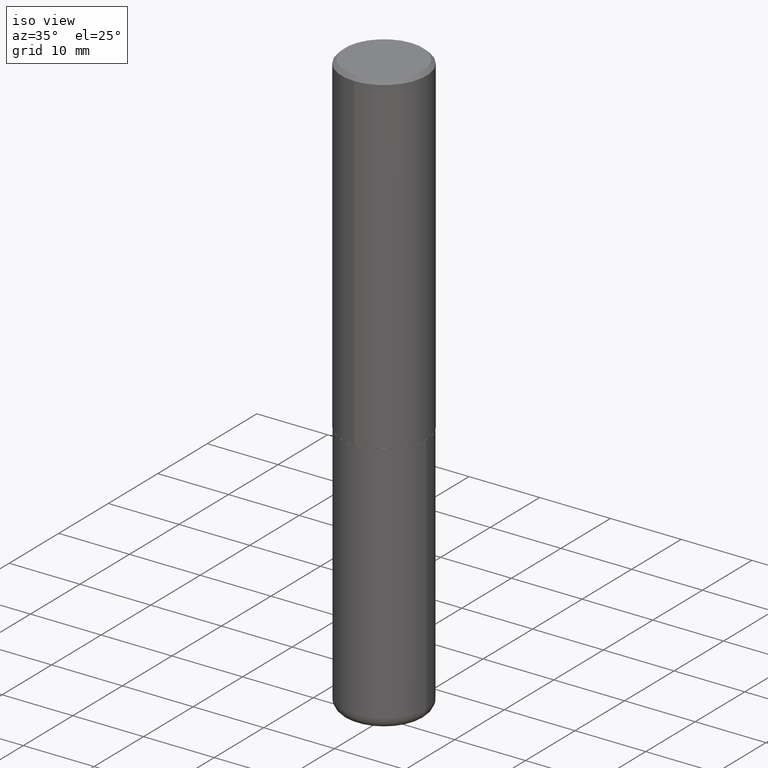
[diagram: clean part render]
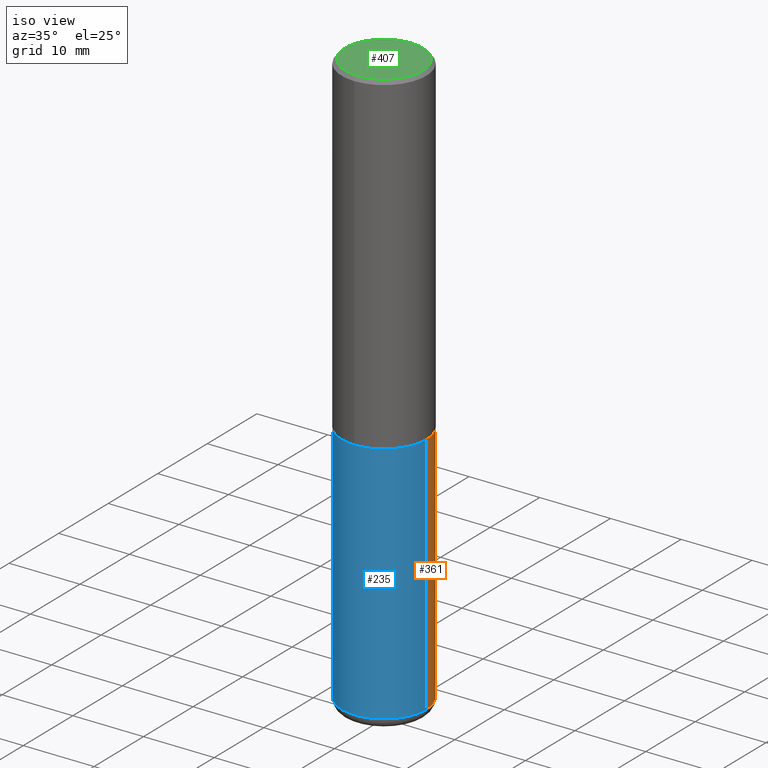
[diagram: same view with three faces highlighted in distinct colors, each labeled with its STEP entity id]
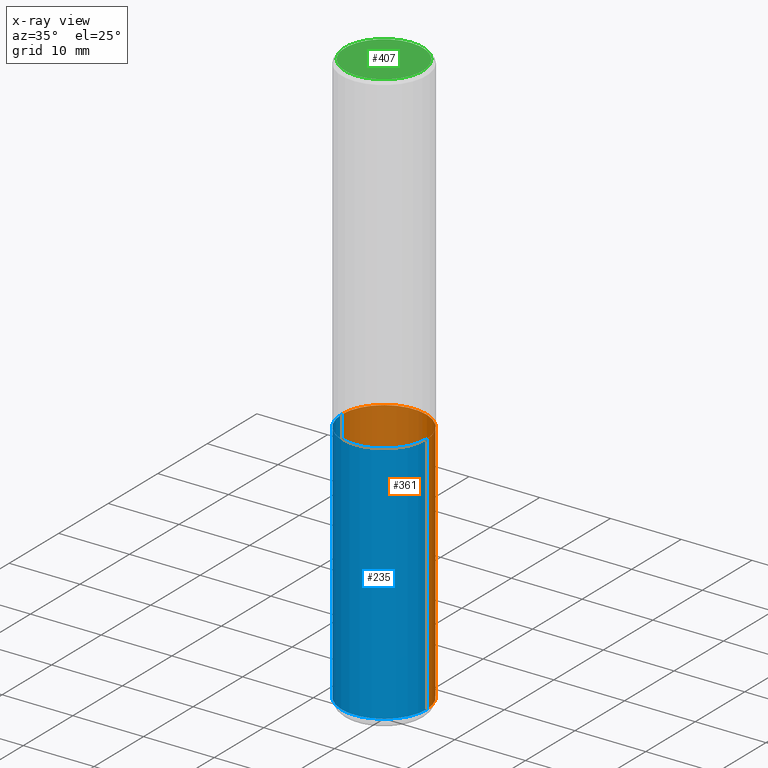
[diagram: x-ray of the same camera — body ghosted, the three highlighted faces saturated]
A machine part, iso view with three faces highlighted in distinct colors.
The next image is the same camera in x-ray (body ghosted, the three faces saturated) — at least one of them is partly hidden behind the body in this view.
Their STEP definitions:

[orange] entity #361 — the highlighted cylindrical surface (partial cylindrical patch) has radius 5.9995 mm, axis along (-0, 0, 1).
#19 = ORIENTED_EDGE ( 'NONE', *, *, #353, .F. ) ;
#23 = CARTESIAN_POINT ( 'NONE',  ( -0.2361999999999999933, -9.524465081946761225E-15, -3.208600000000000119 ) ) ;
#30 = DIRECTION ( 'NONE',  ( 1.000000000000000000, -6.982962677686265133E-15, 0.000000000000000000 ) ) ;
#42 = AXIS2_PLACEMENT_3D ( 'NONE', #244, #249, #30 ) ;
#55 = FACE_OUTER_BOUND ( 'NONE', #131, .T. ) ;
#79 = CARTESIAN_POINT ( 'NONE',  ( -0.2361999999999999933, -7.153400104738381203E-15, -1.850400000000000267 ) ) ;
#94 = VECTOR ( 'NONE', #300, 39.37007874015748143 ) ;
#96 = CARTESIAN_POINT ( 'NONE',  ( 0.2361999999999999933, -8.110012853864854101E-15, -1.850400000000000267 ) ) ;
#103 = CIRCLE ( 'NONE', #280, 0.2361999999999999933 ) ;
#120 = DIRECTION ( 'NONE',  ( -2.445468806185136597E-29, 3.491481338843145583E-15, 1.000000000000000000 ) ) ;
#130 = AXIS2_PLACEMENT_3D ( 'NONE', #332, #376, #371 ) ;
#131 = EDGE_LOOP ( 'NONE', ( #169, #208, #226, #19 ) ) ;
#145 = DIRECTION ( 'NONE',  ( 1.000000000000000000, -6.982962677686269077E-15, 0.000000000000000000 ) ) ;
#155 = CIRCLE ( 'NONE', #42, 0.2361999999999999933 ) ;
#169 = ORIENTED_EDGE ( 'NONE', *, *, #205, .T. ) ;
#171 = EDGE_CURVE ( 'NONE', #368, #286, #172, .T. ) ;
#172 = LINE ( 'NONE', #404, #94 ) ;
#205 = EDGE_CURVE ( 'NONE', #392, #368, #155, .T. ) ;
#208 = ORIENTED_EDGE ( 'NONE', *, *, #171, .T. ) ;
#210 = LINE ( 'NONE', #334, #310 ) ;
#226 = ORIENTED_EDGE ( 'NONE', *, *, #385, .F. ) ;
#243 = CYLINDRICAL_SURFACE ( 'NONE', #130, 0.2361999999999999933 ) ;
#244 = CARTESIAN_POINT ( 'NONE',  ( 7.846531211525630380E-29, -1.120276702381211762E-14, -3.208600000000000119 ) ) ;
#249 = DIRECTION ( 'NONE',  ( -2.445468806185136597E-29, 3.491481338843145583E-15, 1.000000000000000000 ) ) ;
#280 = AXIS2_PLACEMENT_3D ( 'NONE', #405, #120, #145 ) ;
#286 = VERTEX_POINT ( 'NONE', #79 ) ;
#300 = DIRECTION ( 'NONE',  ( -2.445468806185136877E-29, 3.491481338843145188E-15, 1.000000000000000000 ) ) ;
#310 = VECTOR ( 'NONE', #313, 39.37007874015748143 ) ;
#313 = DIRECTION ( 'NONE',  ( -2.445468806185136877E-29, 3.491481338843145188E-15, 1.000000000000000000 ) ) ;
#332 = CARTESIAN_POINT ( 'NONE',  ( 0.000000000000000000, 0.000000000000000000, 0.000000000000000000 ) ) ;
#334 = CARTESIAN_POINT ( 'NONE',  ( 0.2361999999999999933, -1.649375784469496131E-15, 1.151752954443000088E-29 ) ) ;
#353 = EDGE_CURVE ( 'NONE', #392, #418, #210, .T. ) ;
#361 = ADVANCED_FACE ( 'NONE', ( #55 ), #243, .T. ) ;
#368 = VERTEX_POINT ( 'NONE', #23 ) ;
#371 = DIRECTION ( 'NONE',  ( 1.000000000000000000, -6.982962677686266711E-15, 4.876176775795936353E-29 ) ) ;
#376 = DIRECTION ( 'NONE',  ( -2.445468806185136597E-29, 3.491481338843145583E-15, 1.000000000000000000 ) ) ;
#385 = EDGE_CURVE ( 'NONE', #418, #286, #103, .T. ) ;
#392 = VERTEX_POINT ( 'NONE', #401 ) ;
#401 = CARTESIAN_POINT ( 'NONE',  ( 0.2361999999999999933, -1.285214280828161414E-14, -3.208600000000000119 ) ) ;
#404 = CARTESIAN_POINT ( 'NONE',  ( -0.2361999999999999933, 1.678301941865356591E-15, -1.161852468318208757E-29 ) ) ;
#405 = CARTESIAN_POINT ( 'NONE',  ( 4.525095478964977394E-29, -6.460637069395357576E-15, -1.850400000000000267 ) ) ;
#418 = VERTEX_POINT ( 'NONE', #96 ) ;

[blue] entity #235 — the highlighted cylindrical surface (partial cylindrical patch) has radius 5.9995 mm, axis along (-0, 0, 1).
#4 = CYLINDRICAL_SURFACE ( 'NONE', #363, 0.2361999999999999933 ) ;
#7 = DIRECTION ( 'NONE',  ( 1.000000000000000000, -6.982962677686265133E-15, 0.000000000000000000 ) ) ;
#23 = CARTESIAN_POINT ( 'NONE',  ( -0.2361999999999999933, -9.524465081946761225E-15, -3.208600000000000119 ) ) ;
#37 = AXIS2_PLACEMENT_3D ( 'NONE', #288, #264, #7 ) ;
#52 = DIRECTION ( 'NONE',  ( -2.445468806185136597E-29, 3.491481338843145583E-15, 1.000000000000000000 ) ) ;
#60 = CARTESIAN_POINT ( 'NONE',  ( 4.525095478964977394E-29, -6.460637069395357576E-15, -1.850400000000000267 ) ) ;
#64 = FACE_OUTER_BOUND ( 'NONE', #158, .T. ) ;
#79 = CARTESIAN_POINT ( 'NONE',  ( -0.2361999999999999933, -7.153400104738381203E-15, -1.850400000000000267 ) ) ;
#94 = VECTOR ( 'NONE', #300, 39.37007874015748143 ) ;
#96 = CARTESIAN_POINT ( 'NONE',  ( 0.2361999999999999933, -8.110012853864854101E-15, -1.850400000000000267 ) ) ;
#102 = AXIS2_PLACEMENT_3D ( 'NONE', #60, #52, #142 ) ;
#106 = ORIENTED_EDGE ( 'NONE', *, *, #353, .T. ) ;
#122 = EDGE_CURVE ( 'NONE', #368, #392, #170, .T. ) ;
#142 = DIRECTION ( 'NONE',  ( 1.000000000000000000, -6.982962677686269077E-15, 0.000000000000000000 ) ) ;
#143 = DIRECTION ( 'NONE',  ( 1.000000000000000000, -6.982962677686266711E-15, 4.876176775795936353E-29 ) ) ;
#158 = EDGE_LOOP ( 'NONE', ( #296, #212, #106, #192 ) ) ;
#161 = DIRECTION ( 'NONE',  ( -2.445468806185136597E-29, 3.491481338843145583E-15, 1.000000000000000000 ) ) ;
#162 = EDGE_CURVE ( 'NONE', #286, #418, #259, .T. ) ;
#170 = CIRCLE ( 'NONE', #37, 0.2361999999999999933 ) ;
#171 = EDGE_CURVE ( 'NONE', #368, #286, #172, .T. ) ;
#172 = LINE ( 'NONE', #404, #94 ) ;
#192 = ORIENTED_EDGE ( 'NONE', *, *, #162, .F. ) ;
#210 = LINE ( 'NONE', #334, #310 ) ;
#212 = ORIENTED_EDGE ( 'NONE', *, *, #122, .T. ) ;
#235 = ADVANCED_FACE ( 'NONE', ( #64 ), #4, .T. ) ;
#240 = CARTESIAN_POINT ( 'NONE',  ( 0.000000000000000000, 0.000000000000000000, 0.000000000000000000 ) ) ;
#259 = CIRCLE ( 'NONE', #102, 0.2361999999999999933 ) ;
#264 = DIRECTION ( 'NONE',  ( -2.445468806185136597E-29, 3.491481338843145583E-15, 1.000000000000000000 ) ) ;
#286 = VERTEX_POINT ( 'NONE', #79 ) ;
#288 = CARTESIAN_POINT ( 'NONE',  ( 7.846531211525630380E-29, -1.120276702381211762E-14, -3.208600000000000119 ) ) ;
#296 = ORIENTED_EDGE ( 'NONE', *, *, #171, .F. ) ;
#300 = DIRECTION ( 'NONE',  ( -2.445468806185136877E-29, 3.491481338843145188E-15, 1.000000000000000000 ) ) ;
#310 = VECTOR ( 'NONE', #313, 39.37007874015748143 ) ;
#313 = DIRECTION ( 'NONE',  ( -2.445468806185136877E-29, 3.491481338843145188E-15, 1.000000000000000000 ) ) ;
#334 = CARTESIAN_POINT ( 'NONE',  ( 0.2361999999999999933, -1.649375784469496131E-15, 1.151752954443000088E-29 ) ) ;
#353 = EDGE_CURVE ( 'NONE', #392, #418, #210, .T. ) ;
#363 = AXIS2_PLACEMENT_3D ( 'NONE', #240, #161, #143 ) ;
#368 = VERTEX_POINT ( 'NONE', #23 ) ;
#392 = VERTEX_POINT ( 'NONE', #401 ) ;
#401 = CARTESIAN_POINT ( 'NONE',  ( 0.2361999999999999933, -1.285214280828161414E-14, -3.208600000000000119 ) ) ;
#404 = CARTESIAN_POINT ( 'NONE',  ( -0.2361999999999999933, 1.678301941865356591E-15, -1.161852468318208757E-29 ) ) ;
#418 = VERTEX_POINT ( 'NONE', #96 ) ;

[green] entity #407 — the highlighted planar face has unit normal (0, -0, -1).
#10 = CIRCLE ( 'NONE', #194, 0.2161999999999996425 ) ;
#20 = DIRECTION ( 'NONE',  ( -2.445371925614294233E-29, 3.491620077334691546E-15, 1.000000000000000000 ) ) ;
#24 = FACE_OUTER_BOUND ( 'NONE', #397, .T. ) ;
#45 = CARTESIAN_POINT ( 'NONE',  ( -8.038070963430480451E-45, 1.147714573189292330E-30, 3.287054569996039822E-16 ) ) ;
#51 = PLANE ( 'NONE',  #203 ) ;
#66 = DIRECTION ( 'NONE',  ( 6.982962677686265922E-15, 1.000000000000000000, -3.491620077334691546E-15 ) ) ;
#85 = CARTESIAN_POINT ( 'NONE',  ( -8.038070963430480451E-45, 1.147714573189292330E-30, 3.287054569996039822E-16 ) ) ;
#95 = AXIS2_PLACEMENT_3D ( 'NONE', #85, #20, #206 ) ;
#99 = ORIENTED_EDGE ( 'NONE', *, *, #225, .T. ) ;
#137 = ORIENTED_EDGE ( 'NONE', *, *, #393, .T. ) ;
#185 = DIRECTION ( 'NONE',  ( 2.445371925614293953E-29, -3.491620077334691546E-15, -1.000000000000000000 ) ) ;
#188 = DIRECTION ( 'NONE',  ( -6.982962677686265922E-15, -1.000000000000000000, 3.491620077334691152E-15 ) ) ;
#194 = AXIS2_PLACEMENT_3D ( 'NONE', #45, #309, #188 ) ;
#196 = CARTESIAN_POINT ( 'NONE',  ( -1.551844647095918761E-15, -0.2161999999999996425, 1.083593717719362934E-15 ) ) ;
#203 = AXIS2_PLACEMENT_3D ( 'NONE', #217, #185, #66 ) ;
#206 = DIRECTION ( 'NONE',  ( -6.982962677686265922E-15, -1.000000000000000000, 3.491620077334691152E-15 ) ) ;
#215 = CARTESIAN_POINT ( 'NONE',  ( 1.579546157692632438E-15, 0.2161999999999996425, -4.261828037201549199E-16 ) ) ;
#217 = CARTESIAN_POINT ( 'NONE',  ( 1.509716530915768154E-15, 0.2161999999999996425, -5.905355322199570835E-16 ) ) ;
#225 = EDGE_CURVE ( 'NONE', #245, #329, #10, .T. ) ;
#245 = VERTEX_POINT ( 'NONE', #215 ) ;
#282 = CIRCLE ( 'NONE', #95, 0.2161999999999996425 ) ;
#309 = DIRECTION ( 'NONE',  ( -2.445371925614294233E-29, 3.491620077334691546E-15, 1.000000000000000000 ) ) ;
#329 = VERTEX_POINT ( 'NONE', #196 ) ;
#393 = EDGE_CURVE ( 'NONE', #329, #245, #282, .T. ) ;
#397 = EDGE_LOOP ( 'NONE', ( #99, #137 ) ) ;
#407 = ADVANCED_FACE ( 'NONE', ( #24 ), #51, .F. ) ;